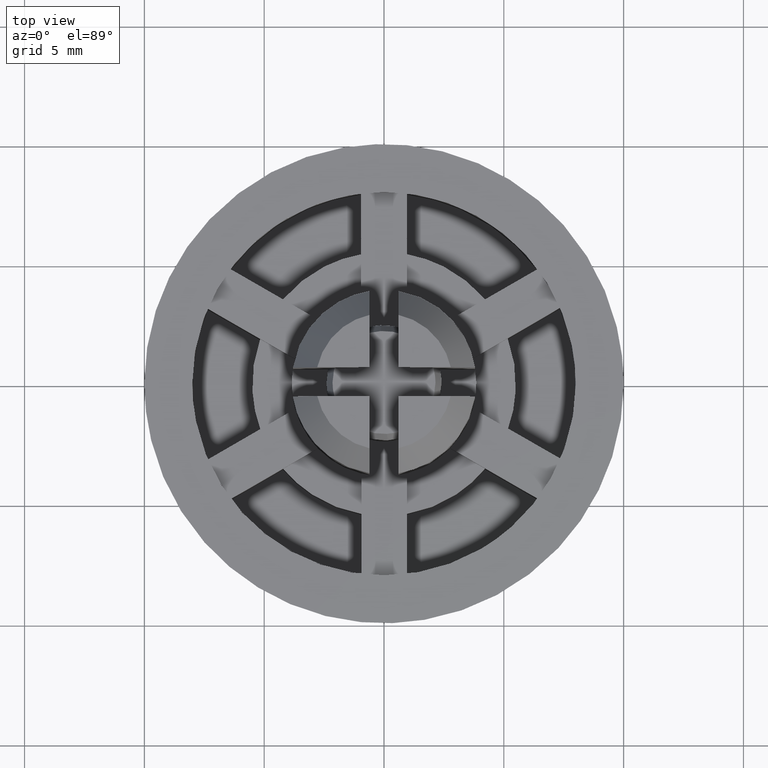
[diagram: clean part render]
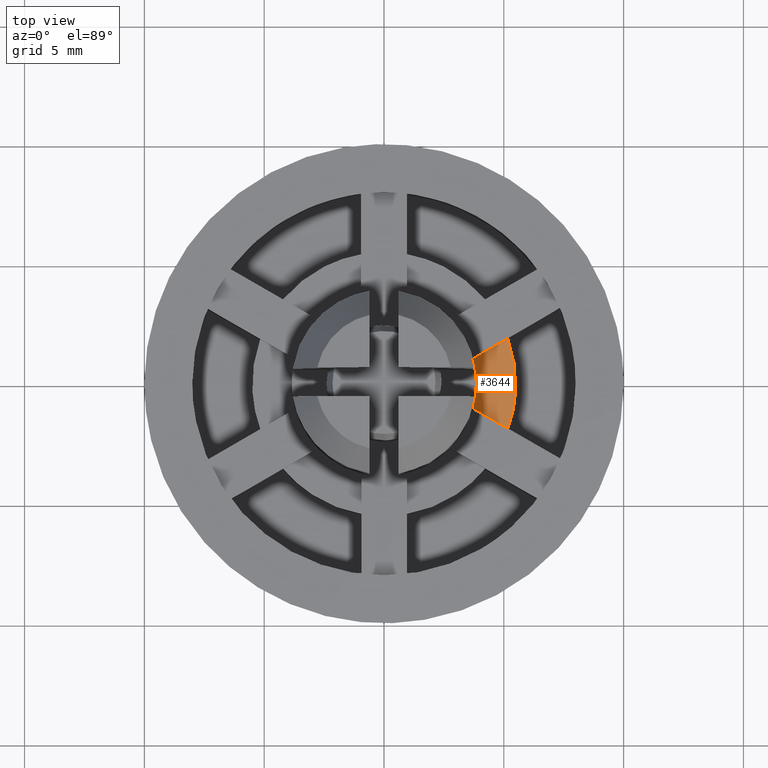
[diagram: same view with one face highlighted and labeled with its STEP entity id]
A machine part, top view. The second image highlights one B-rep face of the part: STEP entity #3644.
In plain terms, the highlighted face is a freeform B-spline surface patch.
Its self-contained STEP definition (entity closure, byte-faithful):
#2800=CARTESIAN_POINT('',(5.159767858821070,1.904414777058050,-1.0));
#2801=VERTEX_POINT('',#2800);
#2807=CARTESIAN_POINT('',(5.173262259974080,-1.867446810361115,-1.0));
#2808=VERTEX_POINT('',#2807);
#2809=CARTESIAN_POINT('',(5.159767858821068,1.904414777058048,-1.0));
#2810=CARTESIAN_POINT('',(5.854935574536219,0.020946911103886,-1.0));
#2811=CARTESIAN_POINT('',(5.173262259974078,-1.867446810361111,-1.0));
#2819=(BOUNDED_CURVE()B_SPLINE_CURVE(2,(#2809,#2810,#2811),.UNSPECIFIED.,.F.,.U.)CURVE()GEOMETRIC_REPRESENTATION_ITEM()QUASI_UNIFORM_CURVE()RATIONAL_B_SPLINE_CURVE((1.0,0.939372386164476,1.0))REPRESENTATION_ITEM(''));
#2820=EDGE_CURVE('',#2801,#2808,#2819,.T.);
#3609=CARTESIAN_POINT('',(5.599524007451605,-2.053821196104538,-1.0));
#3610=CARTESIAN_POINT('',(3.625068293098242,-2.063239534964374,-1.0));
#3611=CARTESIAN_POINT('',(5.579734572097411,2.094825853062902,-1.0));
#3612=CARTESIAN_POINT('',(3.605278857744047,2.085407514203066,-1.0));
#3613=B_SPLINE_SURFACE_WITH_KNOTS('',1,1,((#3609,#3611),(#3610,#3612)),.UNSPECIFIED.,.F.,.F.,.U.,(2,2),(2,2),(0.0,1.974478177405243),(0.0,4.148694247629891),.UNSPECIFIED.);
#3614=CARTESIAN_POINT('',(3.709805666533965,-1.029486239127304,-1.0));
#3615=VERTEX_POINT('',#3614);
#3616=CARTESIAN_POINT('',(3.709805666533965,-1.029486239127304,-1.0));
#3617=CARTESIAN_POINT('',(5.173262259974080,-1.867446810361115,-1.0));
#3618=QUASI_UNIFORM_CURVE('',1,(#3616,#3617),.UNSPECIFIED.,.F.,.U.);
#3619=EDGE_CURVE('',#3615,#2808,#3618,.T.);
#3620=ORIENTED_EDGE('',*,*,#3619,.T.);
#3621=ORIENTED_EDGE('',*,*,#2820,.F.);
#3622=CARTESIAN_POINT('',(3.702343938071160,1.056004340603116,-1.0));
#3623=VERTEX_POINT('',#3622);
#3624=CARTESIAN_POINT('',(5.159767858821070,1.904414777058050,-1.0));
#3625=CARTESIAN_POINT('',(3.702343938071160,1.056004340603116,-1.0));
#3626=QUASI_UNIFORM_CURVE('',1,(#3624,#3625),.UNSPECIFIED.,.F.,.U.);
#3627=EDGE_CURVE('',#2801,#3623,#3626,.T.);
#3628=ORIENTED_EDGE('',*,*,#3627,.T.);
#3629=CARTESIAN_POINT('',(3.702343938071160,1.056004340603116,-1.0));
#3630=CARTESIAN_POINT('',(3.999463049381935,0.014308771822728,-1.0));
#3631=CARTESIAN_POINT('',(3.709805666533966,-1.029486239127302,-1.0));
#3639=(BOUNDED_CURVE()B_SPLINE_CURVE(2,(#3629,#3630,#3631),.UNSPECIFIED.,.F.,.U.)CURVE()GEOMETRIC_REPRESENTATION_ITEM()QUASI_UNIFORM_CURVE()RATIONAL_B_SPLINE_CURVE((1.0,0.962623060443368,1.0))REPRESENTATION_ITEM(''));
#3640=EDGE_CURVE('',#3623,#3615,#3639,.T.);
#3641=ORIENTED_EDGE('',*,*,#3640,.T.);
#3642=EDGE_LOOP('',(#3620,#3621,#3628,#3641));
#3643=FACE_OUTER_BOUND('',#3642,.T.);
#3644=ADVANCED_FACE('',(#3643),#3613,.F.);